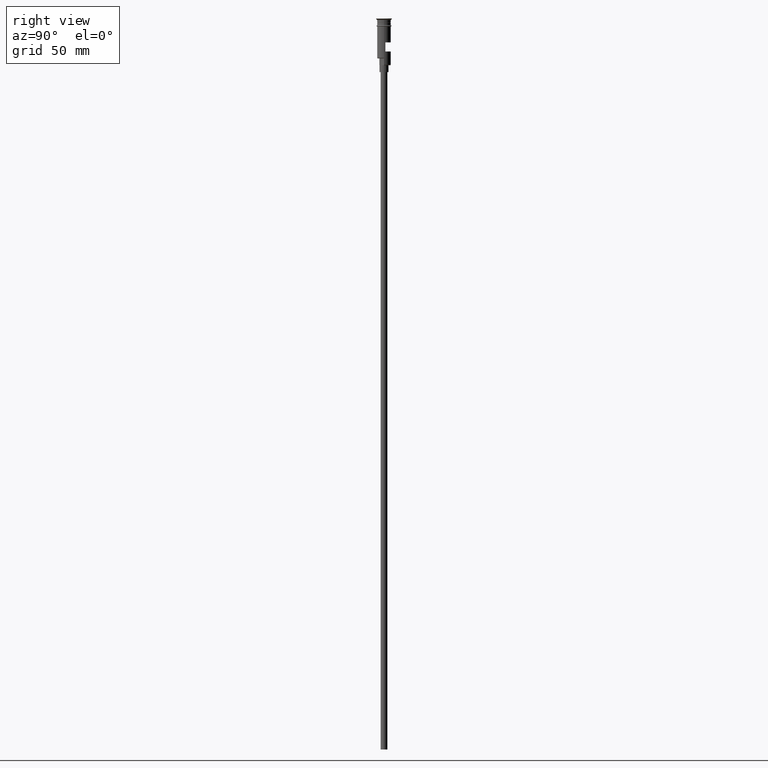
[diagram: clean part render]
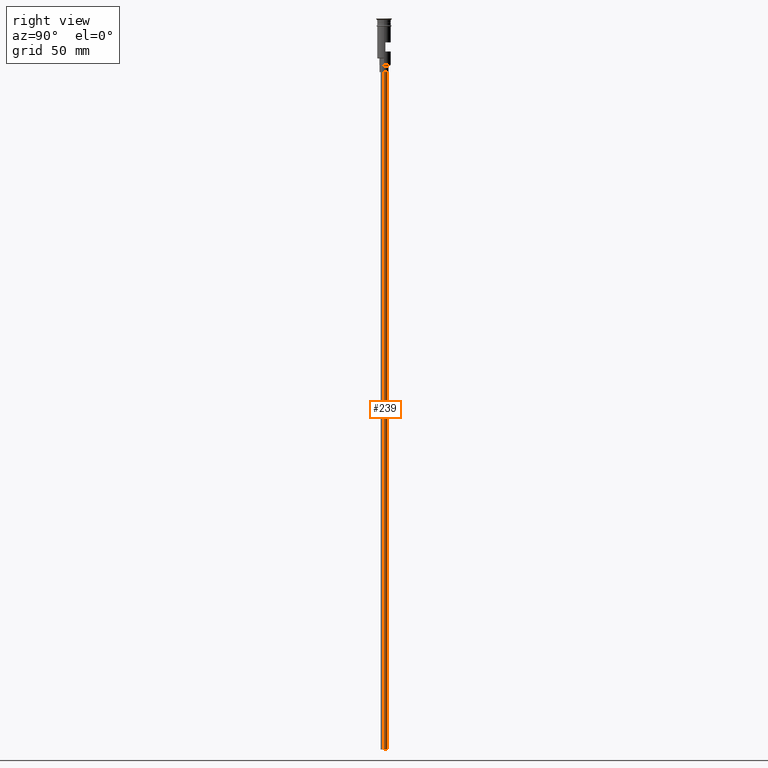
[diagram: same view with one face highlighted and labeled with its STEP entity id]
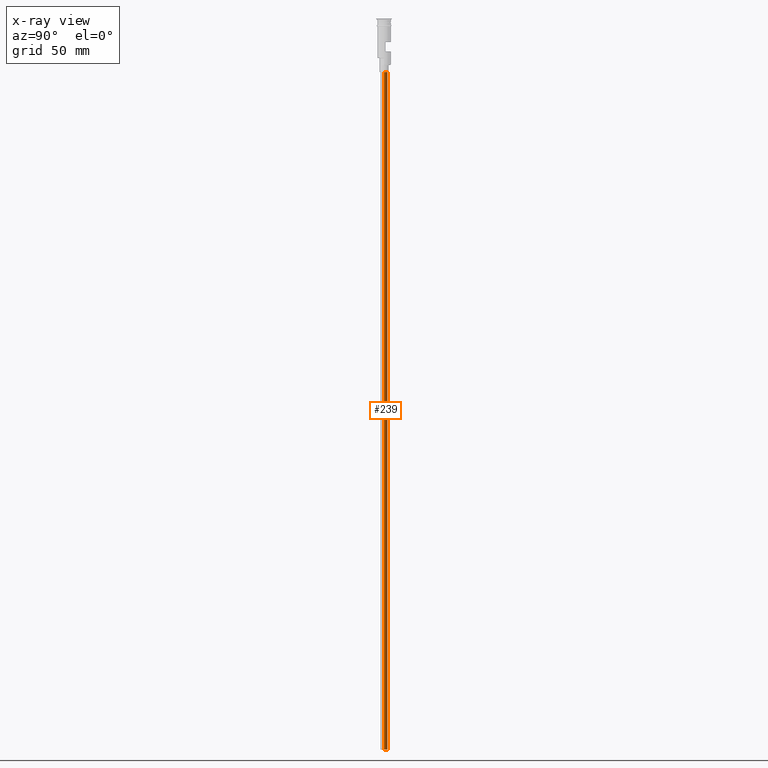
[diagram: x-ray of the same camera — body ghosted, the highlighted face saturated]
A machine part, right view. The second image highlights one B-rep face of the part: STEP entity #239.
The next image is the same camera in x-ray: the body ghosted, the highlighted face saturated — about 0% of this face is hidden behind the body in this view.
In plain terms, the highlighted cylindrical surface (edge-blend (fillet) strip) has radius 1.5 mm, axis along (-0, -0, 1).
Its self-contained STEP definition (entity closure, byte-faithful):
#5 = CIRCLE ( 'NONE', #382, 1.500000000000000222 ) ;
#37 = EDGE_LOOP ( 'NONE', ( #728, #97, #318, #313 ) ) ;
#45 = VERTEX_POINT ( 'NONE', #288 ) ;
#97 = ORIENTED_EDGE ( 'NONE', *, *, #1512, .T. ) ;
#135 = CARTESIAN_POINT ( 'NONE',  ( -1.500000000000000222, 1.836970198721030181E-16, -320.5000000000000000 ) ) ;
#199 = AXIS2_PLACEMENT_3D ( 'NONE', #1215, #732, #1325 ) ;
#234 = DIRECTION ( 'NONE',  ( 0.000000000000000000, 0.000000000000000000, -1.000000000000000000 ) ) ;
#239 = ADVANCED_FACE ( 'NONE', ( #839 ), #1351, .T. ) ;
#254 = DIRECTION ( 'NONE',  ( -0.000000000000000000, -0.000000000000000000, 1.000000000000000000 ) ) ;
#288 = CARTESIAN_POINT ( 'NONE',  ( -1.500000000000000222, 1.836970198721030181E-16, -320.5000000000000000 ) ) ;
#313 = ORIENTED_EDGE ( 'NONE', *, *, #565, .F. ) ;
#318 = ORIENTED_EDGE ( 'NONE', *, *, #376, .T. ) ;
#370 = DIRECTION ( 'NONE',  ( 0.000000000000000000, 0.000000000000000000, -1.000000000000000000 ) ) ;
#376 = EDGE_CURVE ( 'NONE', #1125, #695, #1419, .T. ) ;
#382 = AXIS2_PLACEMENT_3D ( 'NONE', #1200, #234, #1246 ) ;
#450 = CARTESIAN_POINT ( 'NONE',  ( -1.500000000000000222, 1.836970198721030181E-16, -23.50000000000000000 ) ) ;
#478 = LINE ( 'NONE', #135, #1373 ) ;
#565 = EDGE_CURVE ( 'NONE', #1471, #695, #675, .T. ) ;
#665 = DIRECTION ( 'NONE',  ( -0.000000000000000000, -0.000000000000000000, 1.000000000000000000 ) ) ;
#675 = LINE ( 'NONE', #1299, #1041 ) ;
#695 = VERTEX_POINT ( 'NONE', #1443 ) ;
#728 = ORIENTED_EDGE ( 'NONE', *, *, #1461, .F. ) ;
#732 = DIRECTION ( 'NONE',  ( -0.000000000000000000, -0.000000000000000000, 1.000000000000000000 ) ) ;
#839 = FACE_OUTER_BOUND ( 'NONE', #37, .T. ) ;
#909 = DIRECTION ( 'NONE',  ( -1.000000000000000000, 0.000000000000000000, 0.000000000000000000 ) ) ;
#1041 = VECTOR ( 'NONE', #665, 1000.000000000000000 ) ;
#1125 = VERTEX_POINT ( 'NONE', #450 ) ;
#1140 = AXIS2_PLACEMENT_3D ( 'NONE', #1255, #370, #909 ) ;
#1200 = CARTESIAN_POINT ( 'NONE',  ( 0.000000000000000000, 0.000000000000000000, -320.5000000000000000 ) ) ;
#1215 = CARTESIAN_POINT ( 'NONE',  ( 0.000000000000000000, 0.000000000000000000, -320.5000000000000000 ) ) ;
#1246 = DIRECTION ( 'NONE',  ( -1.000000000000000000, 0.000000000000000000, 0.000000000000000000 ) ) ;
#1255 = CARTESIAN_POINT ( 'NONE',  ( 0.000000000000000000, 0.000000000000000000, -23.50000000000000000 ) ) ;
#1299 = CARTESIAN_POINT ( 'NONE',  ( 1.500000000000000222, 0.000000000000000000, -320.5000000000000000 ) ) ;
#1325 = DIRECTION ( 'NONE',  ( 1.000000000000000000, 0.000000000000000000, 0.000000000000000000 ) ) ;
#1351 = CYLINDRICAL_SURFACE ( 'NONE', #199, 1.500000000000000222 ) ;
#1373 = VECTOR ( 'NONE', #254, 1000.000000000000000 ) ;
#1419 = CIRCLE ( 'NONE', #1140, 1.500000000000000222 ) ;
#1443 = CARTESIAN_POINT ( 'NONE',  ( 1.500000000000000222, 0.000000000000000000, -23.50000000000000000 ) ) ;
#1461 = EDGE_CURVE ( 'NONE', #45, #1471, #5, .T. ) ;
#1470 = CARTESIAN_POINT ( 'NONE',  ( 1.500000000000000222, 0.000000000000000000, -320.5000000000000000 ) ) ;
#1471 = VERTEX_POINT ( 'NONE', #1470 ) ;
#1512 = EDGE_CURVE ( 'NONE', #45, #1125, #478, .T. ) ;